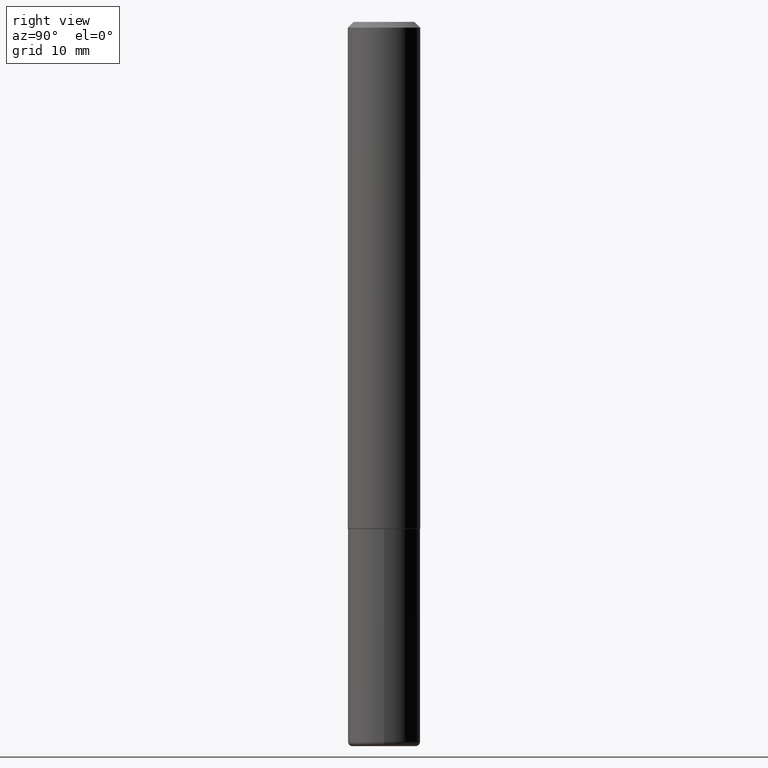
[diagram: clean part render]
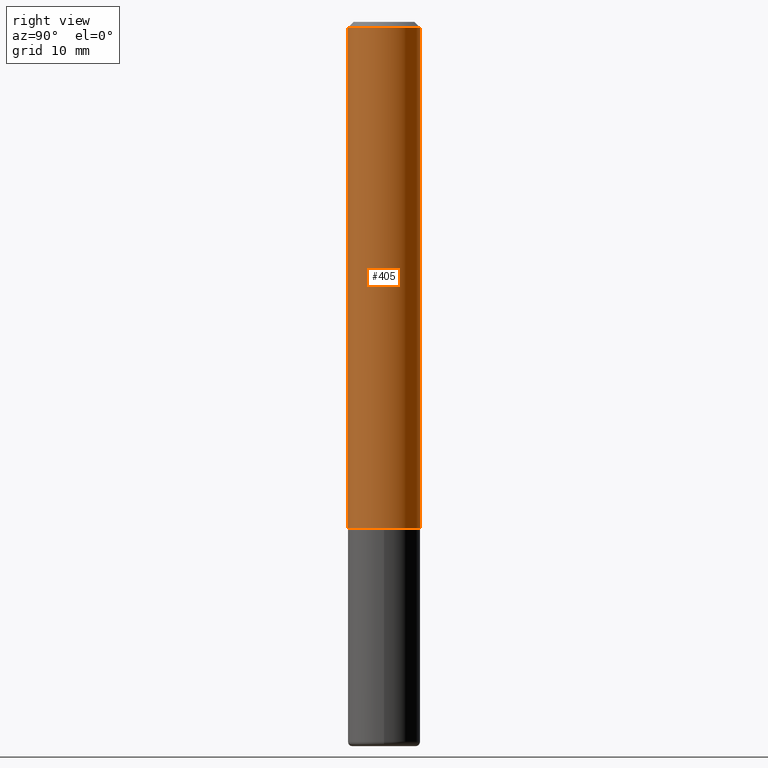
[diagram: same view with one face highlighted and labeled with its STEP entity id]
A machine part, right view. The second image highlights one B-rep face of the part: STEP entity #405.
In plain terms, the highlighted cylindrical surface (edge-blend (fillet) strip) has radius 3.175 mm, axis along (-0, 0, 1).
Its self-contained STEP definition (entity closure, byte-faithful):
#7 = ORIENTED_EDGE ( 'NONE', *, *, #345, .F. ) ;
#15 = VERTEX_POINT ( 'NONE', #218 ) ;
#16 = DIRECTION ( 'NONE',  ( -2.444769625519019670E-29, 3.492482605351917386E-15, 1.000000000000000000 ) ) ;
#37 = DIRECTION ( 'NONE',  ( -6.982962677686265922E-15, -1.000000000000000000, 3.483106191921935554E-15 ) ) ;
#55 = CARTESIAN_POINT ( 'NONE',  ( 8.881784197001260212E-16, 0.1250000000000001110, -4.365603256689900677E-16 ) ) ;
#67 = DIRECTION ( 'NONE',  ( -6.982962677686265133E-15, -1.000000000000000000, 4.370956789862812472E-15 ) ) ;
#71 = CARTESIAN_POINT ( 'NONE',  ( -8.728703347107422194E-16, -0.1250000000000063560, -1.748999999999999222 ) ) ;
#78 = ORIENTED_EDGE ( 'NONE', *, *, #324, .T. ) ;
#81 = ORIENTED_EDGE ( 'NONE', *, *, #132, .F. ) ;
#95 = CARTESIAN_POINT ( 'NONE',  ( 8.728703347107837333E-16, 0.1249999999999999306, -0.02000000000000046185 ) ) ;
#115 = VERTEX_POINT ( 'NONE', #71 ) ;
#119 = CARTESIAN_POINT ( 'NONE',  ( 4.889539251038044560E-31, -6.984965210703842315E-17, -0.02000000000000002470 ) ) ;
#132 = EDGE_CURVE ( 'NONE', #398, #337, #299, .T. ) ;
#133 = CYLINDRICAL_SURFACE ( 'NONE', #406, 0.1250000000000001110 ) ;
#161 = LINE ( 'NONE', #55, #287 ) ;
#167 = CARTESIAN_POINT ( 'NONE',  ( 0.000000000000000000, 0.000000000000000000, 0.000000000000000000 ) ) ;
#174 = CIRCLE ( 'NONE', #256, 0.1250000000000002498 ) ;
#204 = ORIENTED_EDGE ( 'NONE', *, *, #284, .T. ) ;
#218 = CARTESIAN_POINT ( 'NONE',  ( 8.881784197001479121E-16, 0.1249999999999941019, -1.749000000000000332 ) ) ;
#251 = LINE ( 'NONE', #378, #325 ) ;
#256 = AXIS2_PLACEMENT_3D ( 'NONE', #305, #293, #67 ) ;
#259 = FACE_OUTER_BOUND ( 'NONE', #368, .T. ) ;
#284 = EDGE_CURVE ( 'NONE', #115, #15, #174, .T. ) ;
#287 = VECTOR ( 'NONE', #410, 39.37007874015748143 ) ;
#290 = CARTESIAN_POINT ( 'NONE',  ( -8.575622497214408537E-16, -0.1250000000000000555, -0.01999999999999959102 ) ) ;
#293 = DIRECTION ( 'NONE',  ( -2.444769625519019670E-29, 3.492482605351917386E-15, 1.000000000000000000 ) ) ;
#299 = CIRCLE ( 'NONE', #395, 0.1250000000000000000 ) ;
#305 = CARTESIAN_POINT ( 'NONE',  ( 4.275902075032765006E-29, -6.108352076760502035E-15, -1.748999999999999888 ) ) ;
#322 = DIRECTION ( 'NONE',  ( -6.982962677686266711E-15, -1.000000000000000000, 3.492482605351917386E-15 ) ) ;
#323 = DIRECTION ( 'NONE',  ( -2.444769625519019670E-29, 3.492482605351917386E-15, 1.000000000000000000 ) ) ;
#324 = EDGE_CURVE ( 'NONE', #15, #337, #161, .T. ) ;
#325 = VECTOR ( 'NONE', #414, 39.37007874015748143 ) ;
#337 = VERTEX_POINT ( 'NONE', #95 ) ;
#345 = EDGE_CURVE ( 'NONE', #115, #398, #251, .T. ) ;
#368 = EDGE_LOOP ( 'NONE', ( #204, #78, #81, #7 ) ) ;
#378 = CARTESIAN_POINT ( 'NONE',  ( -8.728703347107841277E-16, -0.1250000000000001110, 4.365603256689900677E-16 ) ) ;
#395 = AXIS2_PLACEMENT_3D ( 'NONE', #119, #16, #37 ) ;
#398 = VERTEX_POINT ( 'NONE', #290 ) ;
#405 = ADVANCED_FACE ( 'NONE', ( #259 ), #133, .T. ) ;
#406 = AXIS2_PLACEMENT_3D ( 'NONE', #167, #323, #322 ) ;
#410 = DIRECTION ( 'NONE',  ( -2.444769625519019670E-29, 3.492482605351917386E-15, 1.000000000000000000 ) ) ;
#414 = DIRECTION ( 'NONE',  ( -2.444769625519019670E-29, 3.492482605351917386E-15, 1.000000000000000000 ) ) ;